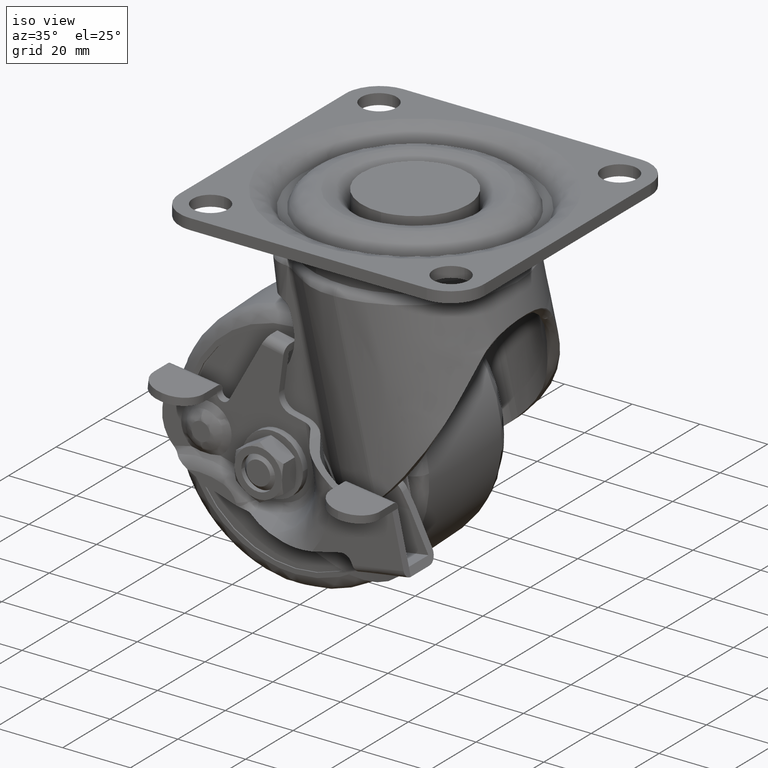
[diagram: clean part render]
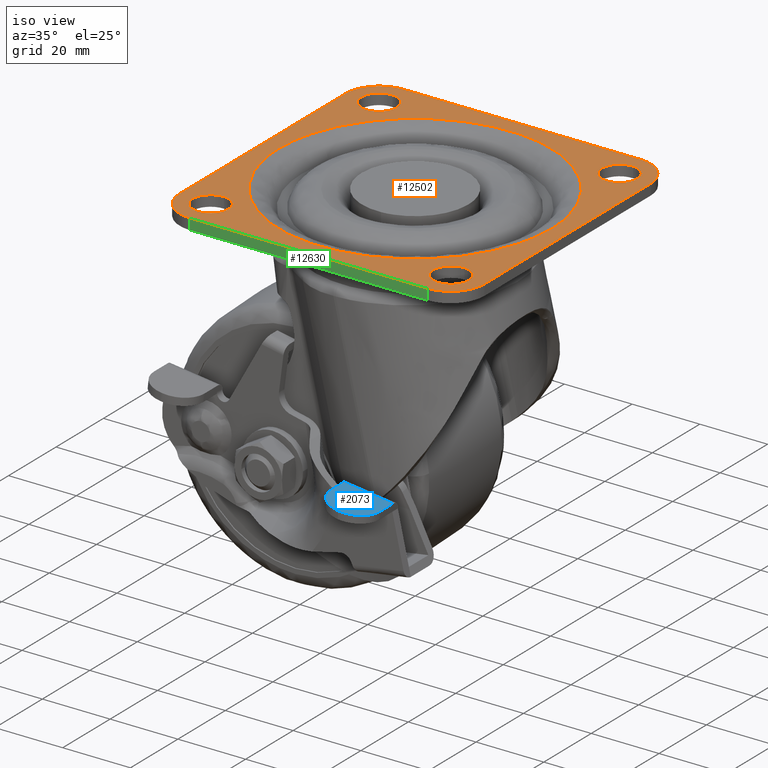
[diagram: same view with three faces highlighted in distinct colors, each labeled with its STEP entity id]
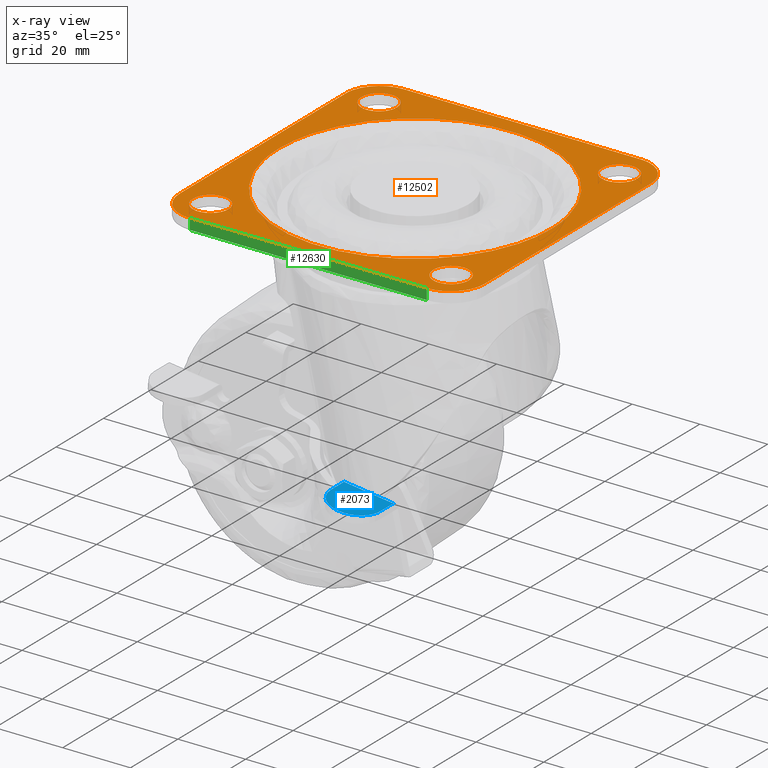
[diagram: x-ray of the same camera — body ghosted, the three highlighted faces saturated]
A machine part, iso view with three faces highlighted in distinct colors.
The next image is the same camera in x-ray (body ghosted, the three faces saturated) — at least one of them is partly hidden behind the body in this view.
Their STEP definitions:

[orange] entity #12502 — the highlighted face is a freeform B-spline surface patch.
#11125=CARTESIAN_POINT('',(-35.820504832751801,30.259792308297051,2.775558E-017));
#11126=VERTEX_POINT('',#11125);
#11127=CARTESIAN_POINT('',(-30.250000000000000,35.500000000000000,0.0));
#11128=VERTEX_POINT('',#11127);
#11129=CARTESIAN_POINT('',(-35.820504832751809,30.259792308297047,0.0));
#11130=CARTESIAN_POINT('',(-35.660402007414767,30.250000000000000,0.0));
#11131=CARTESIAN_POINT('',(-35.500000000000000,30.250000000000000,0.0));
#11132=CARTESIAN_POINT('',(-30.249999999999986,30.249999999999986,0.0));
#11133=CARTESIAN_POINT('',(-30.250000000000000,35.500000000000000,0.0));
#11141=(BOUNDED_CURVE()B_SPLINE_CURVE(2,(#11129,#11130,#11131,#11132,#11133),.UNSPECIFIED.,.F.,.U.)B_SPLINE_CURVE_WITH_KNOTS((3,2,3),(0.239332962235587,0.250000000000000,0.500000000000000),.UNSPECIFIED.)CURVE()GEOMETRIC_REPRESENTATION_ITEM()RATIONAL_B_SPLINE_CURVE((0.976072041659525,0.987502787895906,1.0,0.707106781186547,1.0))REPRESENTATION_ITEM(''));
#11142=EDGE_CURVE('',#11126,#11128,#11141,.T.);
#11144=CARTESIAN_POINT('',(-35.179495167248213,40.740207691702949,2.775558E-017));
#11145=VERTEX_POINT('',#11144);
#11146=CARTESIAN_POINT('',(-30.250000000000000,35.500000000000000,0.0));
#11147=CARTESIAN_POINT('',(-30.249999999999986,40.438706851071906,0.0));
#11148=CARTESIAN_POINT('',(-35.179495167248206,40.740207691702935,0.0));
#11156=(BOUNDED_CURVE()B_SPLINE_CURVE(2,(#11146,#11147,#11148),.UNSPECIFIED.,.F.,.U.)B_SPLINE_CURVE_WITH_KNOTS((3,3),(0.500000000000000,0.739332962235587),.UNSPECIFIED.)CURVE()GEOMETRIC_REPRESENTATION_ITEM()RATIONAL_B_SPLINE_CURVE((1.0,0.719603993290642,0.976072041659526))REPRESENTATION_ITEM(''));
#11157=EDGE_CURVE('',#11128,#11145,#11156,.T.);
#11224=CARTESIAN_POINT('',(-40.749999999999993,35.500000000000000,0.0));
#11225=VERTEX_POINT('',#11224);
#11226=CARTESIAN_POINT('',(-40.749999999999993,35.500000000000000,0.0));
#11227=CARTESIAN_POINT('',(-40.749999999999986,30.561293148928090,0.0));
#11228=CARTESIAN_POINT('',(-35.820504832751809,30.259792308297044,0.0));
#11236=(BOUNDED_CURVE()B_SPLINE_CURVE(2,(#11226,#11227,#11228),.UNSPECIFIED.,.F.,.U.)B_SPLINE_CURVE_WITH_KNOTS((3,3),(0.0,0.239332962235587),.UNSPECIFIED.)CURVE()GEOMETRIC_REPRESENTATION_ITEM()RATIONAL_B_SPLINE_CURVE((1.0,0.719603993290642,0.976072041659525))REPRESENTATION_ITEM(''));
#11237=EDGE_CURVE('',#11225,#11126,#11236,.T.);
#11271=CARTESIAN_POINT('',(-35.179495167248206,40.740207691702928,0.0));
#11272=CARTESIAN_POINT('',(-35.339597992585240,40.749999999999986,0.0));
#11273=CARTESIAN_POINT('',(-35.500000000000000,40.749999999999993,0.0));
#11274=CARTESIAN_POINT('',(-40.749999999999986,40.749999999999986,0.0));
#11275=CARTESIAN_POINT('',(-40.749999999999993,35.500000000000000,0.0));
#11283=(BOUNDED_CURVE()B_SPLINE_CURVE(2,(#11271,#11272,#11273,#11274,#11275),.UNSPECIFIED.,.F.,.U.)B_SPLINE_CURVE_WITH_KNOTS((3,2,3),(0.739332962235587,0.750000000000000,1.0),.UNSPECIFIED.)CURVE()GEOMETRIC_REPRESENTATION_ITEM()RATIONAL_B_SPLINE_CURVE((0.976072041659526,0.987502787895906,1.0,0.707106781186547,1.0))REPRESENTATION_ITEM(''));
#11284=EDGE_CURVE('',#11145,#11225,#11283,.T.);
#11307=CARTESIAN_POINT('',(35.179495167248199,30.259792308297051,-1.665335E-016));
#11308=VERTEX_POINT('',#11307);
#11309=CARTESIAN_POINT('',(40.749999999999993,35.500000000000000,0.0));
#11310=VERTEX_POINT('',#11309);
#11311=CARTESIAN_POINT('',(35.179495167248199,30.259792308297051,0.0));
#11312=CARTESIAN_POINT('',(35.339597992585240,30.249999999999996,0.0));
#11313=CARTESIAN_POINT('',(35.500000000000000,30.250000000000000,0.0));
#11314=CARTESIAN_POINT('',(40.749999999999986,30.249999999999986,0.0));
#11315=CARTESIAN_POINT('',(40.749999999999993,35.500000000000000,0.0));
#11323=(BOUNDED_CURVE()B_SPLINE_CURVE(2,(#11311,#11312,#11313,#11314,#11315),.UNSPECIFIED.,.F.,.U.)B_SPLINE_CURVE_WITH_KNOTS((3,2,3),(0.239332962235587,0.250000000000000,0.500000000000000),.UNSPECIFIED.)CURVE()GEOMETRIC_REPRESENTATION_ITEM()RATIONAL_B_SPLINE_CURVE((0.976072041659525,0.987502787895906,1.0,0.707106781186547,1.0))REPRESENTATION_ITEM(''));
#11324=EDGE_CURVE('',#11308,#11310,#11323,.T.);
#11326=CARTESIAN_POINT('',(35.820504832751787,40.740207691702949,2.775558E-017));
#11327=VERTEX_POINT('',#11326);
#11328=CARTESIAN_POINT('',(40.749999999999993,35.500000000000000,0.0));
#11329=CARTESIAN_POINT('',(40.749999999999993,40.438706851071906,0.0));
#11330=CARTESIAN_POINT('',(35.820504832751787,40.740207691702935,0.0));
#11338=(BOUNDED_CURVE()B_SPLINE_CURVE(2,(#11328,#11329,#11330),.UNSPECIFIED.,.F.,.U.)B_SPLINE_CURVE_WITH_KNOTS((3,3),(0.500000000000000,0.739332962235587),.UNSPECIFIED.)CURVE()GEOMETRIC_REPRESENTATION_ITEM()RATIONAL_B_SPLINE_CURVE((1.0,0.719603993290642,0.976072041659526))REPRESENTATION_ITEM(''));
#11339=EDGE_CURVE('',#11310,#11327,#11338,.T.);
#11406=CARTESIAN_POINT('',(30.250000000000000,35.500000000000000,0.0));
#11407=VERTEX_POINT('',#11406);
#11408=CARTESIAN_POINT('',(30.250000000000000,35.500000000000000,0.0));
#11409=CARTESIAN_POINT('',(30.249999999999993,30.561293148928080,0.0));
#11410=CARTESIAN_POINT('',(35.179495167248199,30.259792308297051,0.0));
#11418=(BOUNDED_CURVE()B_SPLINE_CURVE(2,(#11408,#11409,#11410),.UNSPECIFIED.,.F.,.U.)B_SPLINE_CURVE_WITH_KNOTS((3,3),(0.0,0.239332962235587),.UNSPECIFIED.)CURVE()GEOMETRIC_REPRESENTATION_ITEM()RATIONAL_B_SPLINE_CURVE((1.0,0.719603993290642,0.976072041659525))REPRESENTATION_ITEM(''));
#11419=EDGE_CURVE('',#11407,#11308,#11418,.T.);
#11453=CARTESIAN_POINT('',(35.820504832751787,40.740207691702935,0.0));
#11454=CARTESIAN_POINT('',(35.660402007414753,40.749999999999986,0.0));
#11455=CARTESIAN_POINT('',(35.500000000000000,40.749999999999993,0.0));
#11456=CARTESIAN_POINT('',(30.249999999999986,40.749999999999986,0.0));
#11457=CARTESIAN_POINT('',(30.250000000000000,35.500000000000000,0.0));
#11465=(BOUNDED_CURVE()B_SPLINE_CURVE(2,(#11453,#11454,#11455,#11456,#11457),.UNSPECIFIED.,.F.,.U.)B_SPLINE_CURVE_WITH_KNOTS((3,2,3),(0.739332962235587,0.750000000000000,1.0),.UNSPECIFIED.)CURVE()GEOMETRIC_REPRESENTATION_ITEM()RATIONAL_B_SPLINE_CURVE((0.976072041659526,0.987502787895906,1.0,0.707106781186547,1.0))REPRESENTATION_ITEM(''));
#11466=EDGE_CURVE('',#11327,#11407,#11465,.T.);
#11489=CARTESIAN_POINT('',(35.179495167248199,-40.740207691702949,2.775558E-017));
#11490=VERTEX_POINT('',#11489);
#11491=CARTESIAN_POINT('',(40.749999999999993,-35.500000000000000,0.0));
#11492=VERTEX_POINT('',#11491);
#11493=CARTESIAN_POINT('',(35.179495167248199,-40.740207691702942,0.0));
#11494=CARTESIAN_POINT('',(35.339597992585233,-40.749999999999993,0.0));
#11495=CARTESIAN_POINT('',(35.500000000000000,-40.749999999999993,0.0));
#11496=CARTESIAN_POINT('',(40.749999999999986,-40.749999999999986,0.0));
#11497=CARTESIAN_POINT('',(40.749999999999993,-35.500000000000000,0.0));
#11505=(BOUNDED_CURVE()B_SPLINE_CURVE(2,(#11493,#11494,#11495,#11496,#11497),.UNSPECIFIED.,.F.,.U.)B_SPLINE_CURVE_WITH_KNOTS((3,2,3),(0.239332962235587,0.250000000000000,0.500000000000000),.UNSPECIFIED.)CURVE()GEOMETRIC_REPRESENTATION_ITEM()RATIONAL_B_SPLINE_CURVE((0.976072041659525,0.987502787895906,1.0,0.707106781186547,1.0))REPRESENTATION_ITEM(''));
#11506=EDGE_CURVE('',#11490,#11492,#11505,.T.);
#11508=CARTESIAN_POINT('',(35.820504832751787,-30.259792308297051,2.775558E-017));
#11509=VERTEX_POINT('',#11508);
#11510=CARTESIAN_POINT('',(40.749999999999993,-35.500000000000000,0.0));
#11511=CARTESIAN_POINT('',(40.749999999999993,-30.561293148928076,0.0));
#11512=CARTESIAN_POINT('',(35.820504832751787,-30.259792308297047,0.0));
#11520=(BOUNDED_CURVE()B_SPLINE_CURVE(2,(#11510,#11511,#11512),.UNSPECIFIED.,.F.,.U.)B_SPLINE_CURVE_WITH_KNOTS((3,3),(0.500000000000000,0.739332962235587),.UNSPECIFIED.)CURVE()GEOMETRIC_REPRESENTATION_ITEM()RATIONAL_B_SPLINE_CURVE((1.0,0.719603993290642,0.976072041659526))REPRESENTATION_ITEM(''));
#11521=EDGE_CURVE('',#11492,#11509,#11520,.T.);
#11588=CARTESIAN_POINT('',(30.250000000000000,-35.500000000000000,0.0));
#11589=VERTEX_POINT('',#11588);
#11590=CARTESIAN_POINT('',(30.250000000000000,-35.500000000000000,0.0));
#11591=CARTESIAN_POINT('',(30.249999999999996,-40.438706851071913,0.0));
#11592=CARTESIAN_POINT('',(35.179495167248199,-40.740207691702942,0.0));
#11600=(BOUNDED_CURVE()B_SPLINE_CURVE(2,(#11590,#11591,#11592),.UNSPECIFIED.,.F.,.U.)B_SPLINE_CURVE_WITH_KNOTS((3,3),(0.0,0.239332962235587),.UNSPECIFIED.)CURVE()GEOMETRIC_REPRESENTATION_ITEM()RATIONAL_B_SPLINE_CURVE((1.0,0.719603993290642,0.976072041659525))REPRESENTATION_ITEM(''));
#11601=EDGE_CURVE('',#11589,#11490,#11600,.T.);
#11635=CARTESIAN_POINT('',(35.820504832751801,-30.259792308297047,0.0));
#11636=CARTESIAN_POINT('',(35.660402007414760,-30.249999999999996,0.0));
#11637=CARTESIAN_POINT('',(35.500000000000000,-30.250000000000000,0.0));
#11638=CARTESIAN_POINT('',(30.249999999999986,-30.249999999999986,0.0));
#11639=CARTESIAN_POINT('',(30.250000000000000,-35.500000000000000,0.0));
#11647=(BOUNDED_CURVE()B_SPLINE_CURVE(2,(#11635,#11636,#11637,#11638,#11639),.UNSPECIFIED.,.F.,.U.)B_SPLINE_CURVE_WITH_KNOTS((3,2,3),(0.739332962235587,0.750000000000000,1.0),.UNSPECIFIED.)CURVE()GEOMETRIC_REPRESENTATION_ITEM()RATIONAL_B_SPLINE_CURVE((0.976072041659525,0.987502787895906,1.0,0.707106781186547,1.0))REPRESENTATION_ITEM(''));
#11648=EDGE_CURVE('',#11509,#11589,#11647,.T.);
#11671=CARTESIAN_POINT('',(-35.820504832751787,-40.740207691702949,2.775558E-017));
#11672=VERTEX_POINT('',#11671);
#11673=CARTESIAN_POINT('',(-30.250000000000000,-35.500000000000000,0.0));
#11674=VERTEX_POINT('',#11673);
#11675=CARTESIAN_POINT('',(-35.820504832751787,-40.740207691702942,0.0));
#11676=CARTESIAN_POINT('',(-35.660402007414753,-40.749999999999993,0.0));
#11677=CARTESIAN_POINT('',(-35.500000000000000,-40.749999999999993,0.0));
#11678=CARTESIAN_POINT('',(-30.249999999999986,-40.749999999999986,0.0));
#11679=CARTESIAN_POINT('',(-30.250000000000000,-35.500000000000000,0.0));
#11687=(BOUNDED_CURVE()B_SPLINE_CURVE(2,(#11675,#11676,#11677,#11678,#11679),.UNSPECIFIED.,.F.,.U.)B_SPLINE_CURVE_WITH_KNOTS((3,2,3),(0.239332962235587,0.250000000000000,0.500000000000000),.UNSPECIFIED.)CURVE()GEOMETRIC_REPRESENTATION_ITEM()RATIONAL_B_SPLINE_CURVE((0.976072041659526,0.987502787895906,1.0,0.707106781186547,1.0))REPRESENTATION_ITEM(''));
#11688=EDGE_CURVE('',#11672,#11674,#11687,.T.);
#11690=CARTESIAN_POINT('',(-35.179495167248213,-30.259792308297051,-1.665335E-016));
#11691=VERTEX_POINT('',#11690);
#11692=CARTESIAN_POINT('',(-30.250000000000000,-35.500000000000000,0.0));
#11693=CARTESIAN_POINT('',(-30.249999999999986,-30.561293148928076,0.0));
#11694=CARTESIAN_POINT('',(-35.179495167248206,-30.259792308297047,0.0));
#11702=(BOUNDED_CURVE()B_SPLINE_CURVE(2,(#11692,#11693,#11694),.UNSPECIFIED.,.F.,.U.)B_SPLINE_CURVE_WITH_KNOTS((3,3),(0.500000000000000,0.739332962235587),.UNSPECIFIED.)CURVE()GEOMETRIC_REPRESENTATION_ITEM()RATIONAL_B_SPLINE_CURVE((1.0,0.719603993290642,0.976072041659526))REPRESENTATION_ITEM(''));
#11703=EDGE_CURVE('',#11674,#11691,#11702,.T.);
#11770=CARTESIAN_POINT('',(-40.749999999999993,-35.500000000000000,0.0));
#11771=VERTEX_POINT('',#11770);
#11772=CARTESIAN_POINT('',(-40.749999999999993,-35.500000000000000,0.0));
#11773=CARTESIAN_POINT('',(-40.749999999999993,-40.438706851071920,0.0));
#11774=CARTESIAN_POINT('',(-35.820504832751794,-40.740207691702928,0.0));
#11782=(BOUNDED_CURVE()B_SPLINE_CURVE(2,(#11772,#11773,#11774),.UNSPECIFIED.,.F.,.U.)B_SPLINE_CURVE_WITH_KNOTS((3,3),(0.0,0.239332962235587),.UNSPECIFIED.)CURVE()GEOMETRIC_REPRESENTATION_ITEM()RATIONAL_B_SPLINE_CURVE((1.0,0.719603993290641,0.976072041659526))REPRESENTATION_ITEM(''));
#11783=EDGE_CURVE('',#11771,#11672,#11782,.T.);
#11817=CARTESIAN_POINT('',(-35.179495167248206,-30.259792308297051,0.0));
#11818=CARTESIAN_POINT('',(-35.339597992585240,-30.249999999999996,0.0));
#11819=CARTESIAN_POINT('',(-35.500000000000000,-30.250000000000000,0.0));
#11820=CARTESIAN_POINT('',(-40.749999999999986,-30.249999999999986,0.0));
#11821=CARTESIAN_POINT('',(-40.749999999999993,-35.500000000000000,0.0));
#11829=(BOUNDED_CURVE()B_SPLINE_CURVE(2,(#11817,#11818,#11819,#11820,#11821),.UNSPECIFIED.,.F.,.U.)B_SPLINE_CURVE_WITH_KNOTS((3,2,3),(0.739332962235587,0.750000000000000,1.0),.UNSPECIFIED.)CURVE()GEOMETRIC_REPRESENTATION_ITEM()RATIONAL_B_SPLINE_CURVE((0.976072041659526,0.987502787895906,1.0,0.707106781186547,1.0))REPRESENTATION_ITEM(''));
#11830=EDGE_CURVE('',#11691,#11771,#11829,.T.);
#12226=CARTESIAN_POINT('',(-38.540439564951292,11.460112629843660,-1.113611E-015));
#12227=VERTEX_POINT('',#12226);
#12241=CARTESIAN_POINT('',(-40.208203932499401,0.0,0.0));
#12242=VERTEX_POINT('',#12241);
#12243=CARTESIAN_POINT('',(-40.208203932499401,0.0,0.0));
#12244=CARTESIAN_POINT('',(-40.208203931730026,5.851409309881770,-5.568056E-016));
#12245=CARTESIAN_POINT('',(-38.540439564951278,11.460112629843657,-1.113611E-015));
#12253=(BOUNDED_CURVE()B_SPLINE_CURVE(2,(#12243,#12244,#12245),.UNSPECIFIED.,.F.,.U.)B_SPLINE_CURVE_WITH_KNOTS((3,3),(0.0,0.048526662065398),.UNSPECIFIED.)CURVE()GEOMETRIC_REPRESENTATION_ITEM()RATIONAL_B_SPLINE_CURVE((1.0,0.943147478997572,0.908365862589150))REPRESENTATION_ITEM(''));
#12254=EDGE_CURVE('',#12242,#12227,#12253,.T.);
#12256=CARTESIAN_POINT('',(38.540439564951299,-11.460112629843660,-1.113611E-015));
#12257=VERTEX_POINT('',#12256);
#12258=CARTESIAN_POINT('',(38.540439564951299,-11.460112629843660,-1.113611E-015));
#12259=CARTESIAN_POINT('',(37.795821765132509,-13.965342330398570,-1.108348E-015));
#12260=CARTESIAN_POINT('',(36.268088796374869,-17.717719020729088,-1.094754E-015));
#12261=CARTESIAN_POINT('',(33.475686237040442,-22.408159612348609,-1.065537E-015));
#12262=CARTESIAN_POINT('',(30.562148134557368,-26.298647580398530,-1.033031E-015));
#12263=CARTESIAN_POINT('',(27.222615185059059,-29.736078502935911,-9.937124E-016));
#12264=CARTESIAN_POINT('',(23.193328854095508,-32.957725252187927,-9.444071E-016));
#12265=CARTESIAN_POINT('',(18.620848232331230,-35.808635493543171,-8.868325E-016));
#12266=CARTESIAN_POINT('',(13.047188248337870,-38.211680929306013,-8.144909E-016));
#12267=CARTESIAN_POINT('',(7.603063371804116,-39.591631584371193,-7.418813E-016));
#12268=CARTESIAN_POINT('',(3.002549657343119,-40.159884822911181,-6.793183E-016));
#12269=CARTESIAN_POINT('',(-0.659272947269974,-40.252946300360541,-6.287967E-016));
#12270=CARTESIAN_POINT('',(-5.060105832568339,-39.984562546823739,-5.673129E-016));
#12271=CARTESIAN_POINT('',(-9.409390183143508,-39.202337641466052,-5.055073E-016));
#12272=CARTESIAN_POINT('',(-14.332143039577920,-37.661692490658623,-4.342319E-016));
#12273=CARTESIAN_POINT('',(-18.163121735747350,-35.962306849017551,-3.777556E-016));
#12274=CARTESIAN_POINT('',(-21.976221599427159,-33.747760293656782,-3.204886E-016));
#12275=CARTESIAN_POINT('',(-25.133110061192831,-31.476569620860101,-2.721948E-016));
#12276=CARTESIAN_POINT('',(-28.597034792919320,-28.397051067213820,-2.180201E-016));
#12277=CARTESIAN_POINT('',(-31.582292405058489,-25.041584441097040,-1.699178E-016));
#12278=CARTESIAN_POINT('',(-34.056746521906462,-21.480416663085649,-1.284747E-016));
#12279=CARTESIAN_POINT('',(-36.303758250302991,-17.513613881714470,-8.936377E-017));
#12280=CARTESIAN_POINT('',(-37.977682542489248,-13.504917534335179,-5.810454E-017));
#12281=CARTESIAN_POINT('',(-39.300448521802878,-8.830522793075060,-3.036660E-017));
#12282=CARTESIAN_POINT('',(-40.033289125722291,-4.629671143317897,-1.175230E-017));
#12283=CARTESIAN_POINT('',(-40.208234757607663,-1.493441700746538,-3.009271E-018));
#12284=CARTESIAN_POINT('',(-40.208203932499401,0.0,0.0));
#12285=B_SPLINE_CURVE_WITH_KNOTS('',3,(#12258,#12259,#12260,#12261,#12262,#12263,#12264,#12265,#12266,#12267,#12268,#12269,#12270,#12271,#12272,#12273,#12274,#12275,#12276,#12277,#12278,#12279,#12280,#12281,#12282,#12283,#12284),.UNSPECIFIED.,.F.,.U.,(4,1,1,1,1,1,1,1,1,1,1,1,1,1,1,1,1,1,1,1,1,1,1,1,4),(0.000000025216252,7.840573062430906,12.096918016360140,16.353234764167890,22.401704575651561,26.434010814585751,31.810430364049271,38.530954436930699,44.579413033762847,48.611757353039863,52.419900248934240,55.556149581855742,61.828692757039263,65.636945986846740,71.013366380022376,74.373628016034203,78.853979624156736,82.662277535663520,88.262707158904263,92.295016460231864,95.655295295375382,101.927777206021700,105.288000604014600,110.216379881113990,114.696709005320500),.UNSPECIFIED.);
#12286=EDGE_CURVE('',#12257,#12242,#12285,.T.);
#12329=CARTESIAN_POINT('',(40.208203932499401,0.0,0.0));
#12330=VERTEX_POINT('',#12329);
#12331=CARTESIAN_POINT('',(40.208203932499401,0.0,0.0));
#12332=CARTESIAN_POINT('',(40.208203931730026,-5.851409309881769,-5.568056E-016));
#12333=CARTESIAN_POINT('',(38.540439564951299,-11.460112629843657,-1.113611E-015));
#12341=(BOUNDED_CURVE()B_SPLINE_CURVE(2,(#12331,#12332,#12333),.UNSPECIFIED.,.F.,.U.)B_SPLINE_CURVE_WITH_KNOTS((3,3),(0.500000000000000,0.548526662065398),.UNSPECIFIED.)CURVE()GEOMETRIC_REPRESENTATION_ITEM()RATIONAL_B_SPLINE_CURVE((1.0,0.943147478997572,0.908365862589150))REPRESENTATION_ITEM(''));
#12342=EDGE_CURVE('',#12330,#12257,#12341,.T.);
#12344=CARTESIAN_POINT('',(-38.540439564951292,11.460112629843660,-1.113611E-015));
#12345=CARTESIAN_POINT('',(-37.923381750150106,13.535834131695919,-1.109249E-015));
#12346=CARTESIAN_POINT('',(-36.677572139631359,16.748884495506680,-1.098472E-015));
#12347=CARTESIAN_POINT('',(-34.178166302812102,21.346336807139348,-1.073126E-015));
#12348=CARTESIAN_POINT('',(-31.769851146094389,24.776268177075401,-1.046687E-015));
#12349=CARTESIAN_POINT('',(-28.810215689424961,28.145121785536240,-1.012491E-015));
#12350=CARTESIAN_POINT('',(-25.197121807352580,31.509314559702322,-9.692368E-016));
#12351=CARTESIAN_POINT('',(-20.398511693151100,34.846237569755672,-9.095102E-016));
#12352=CARTESIAN_POINT('',(-15.068600871822900,37.413167966629103,-8.408743E-016));
#12353=CARTESIAN_POINT('',(-9.586714529588557,39.183336474889749,-7.685282E-016));
#12354=CARTESIAN_POINT('',(-4.717208078747849,40.034565322001221,-7.028105E-016));
#12355=CARTESIAN_POINT('',(0.433714437970055,40.294786585509783,-6.320046E-016));
#12356=CARTESIAN_POINT('',(4.990462611081474,40.004015322443607,-5.683165E-016));
#12357=CARTESIAN_POINT('',(10.279251950537340,38.991905108348149,-4.930374E-016));
#12358=CARTESIAN_POINT('',(15.610452141369800,37.225267955277708,-4.156503E-016));
#12359=CARTESIAN_POINT('',(20.410553612159521,34.767358282699767,-3.442249E-016));
#12360=CARTESIAN_POINT('',(24.486560851957389,31.987152183330110,-2.821772E-016));
#12361=CARTESIAN_POINT('',(28.305401710778050,28.741712991926882,-2.227532E-016));
#12362=CARTESIAN_POINT('',(32.139676150368821,24.431882699549831,-1.609704E-016));
#12363=CARTESIAN_POINT('',(35.296855986124093,19.517735316608601,-1.073463E-016));
#12364=CARTESIAN_POINT('',(37.281102758132221,15.242567265878639,-7.125266E-017));
#12365=CARTESIAN_POINT('',(38.678639527343492,11.218805392700499,-4.379049E-017));
#12366=CARTESIAN_POINT('',(39.854313646201220,6.347053421351478,-1.769176E-017));
#12367=CARTESIAN_POINT('',(40.208451376029359,2.389527151357984,-4.812132E-018));
#12368=CARTESIAN_POINT('',(40.208203932499401,0.0,0.0));
#12369=B_SPLINE_CURVE_WITH_KNOTS('',3,(#12344,#12345,#12346,#12347,#12348,#12349,#12350,#12351,#12352,#12353,#12354,#12355,#12356,#12357,#12358,#12359,#12360,#12361,#12362,#12363,#12364,#12365,#12366,#12367,#12368),.UNSPECIFIED.,.F.,.U.,(4,1,1,1,1,1,1,1,1,1,1,1,1,1,1,1,1,1,1,1,1,1,4),(0.000000024725466,6.496467788988184,10.304758629827280,15.681183944968540,19.041445229484442,23.745806271173731,30.466321053762311,36.514780527521147,41.443193744071323,47.715668989986227,51.299902523249060,56.900248375963123,61.380607072786681,67.429110680320917,73.701578885155342,77.509873433726639,82.214242291164226,88.710751451723070,94.759225531075572,99.687585625715585,102.823850426941210,107.528171829941000,114.696709005321690),.UNSPECIFIED.);
#12370=EDGE_CURVE('',#12227,#12330,#12369,.T.);
#12377=CARTESIAN_POINT('',(-49.495499825562533,49.495499825562533,0.0));
#12378=CARTESIAN_POINT('',(49.495502239550653,49.495499825562533,0.0));
#12379=CARTESIAN_POINT('',(-49.495499825562533,-49.495502239550653,0.0));
#12380=CARTESIAN_POINT('',(49.495502239550653,-49.495502239550653,0.0));
#12381=B_SPLINE_SURFACE_WITH_KNOTS('',1,1,((#12377,#12379),(#12378,#12380)),.UNSPECIFIED.,.F.,.F.,.U.,(2,2),(2,2),(0.0,98.991002065113179),(0.0,98.991002065113179),.UNSPECIFIED.);
#12382=CARTESIAN_POINT('',(35.0,45.0,0.0));
#12383=VERTEX_POINT('',#12382);
#12384=CARTESIAN_POINT('',(-35.0,45.0,0.0));
#12385=VERTEX_POINT('',#12384);
#12386=CARTESIAN_POINT('',(35.0,45.0,0.0));
#12387=CARTESIAN_POINT('',(-35.0,45.0,0.0));
#12388=QUASI_UNIFORM_CURVE('',1,(#12386,#12387),.UNSPECIFIED.,.F.,.U.);
#12389=EDGE_CURVE('',#12383,#12385,#12388,.T.);
#12390=ORIENTED_EDGE('',*,*,#12389,.T.);
#12391=CARTESIAN_POINT('',(-45.0,35.0,0.0));
#12392=VERTEX_POINT('',#12391);
#12393=CARTESIAN_POINT('',(-35.0,45.000000000000007,0.0));
#12394=CARTESIAN_POINT('',(-45.000000000000014,45.000000000000014,0.0));
#12395=CARTESIAN_POINT('',(-45.000000000000007,35.0,0.0));
#12403=(BOUNDED_CURVE()B_SPLINE_CURVE(2,(#12393,#12394,#12395),.UNSPECIFIED.,.F.,.U.)CURVE()GEOMETRIC_REPRESENTATION_ITEM()QUASI_UNIFORM_CURVE()RATIONAL_B_SPLINE_CURVE((1.0,0.707106781186548,1.0))REPRESENTATION_ITEM(''));
#12404=EDGE_CURVE('',#12385,#12392,#12403,.T.);
#12405=ORIENTED_EDGE('',*,*,#12404,.T.);
#12406=CARTESIAN_POINT('',(-45.0,-35.0,0.0));
#12407=VERTEX_POINT('',#12406);
#12408=CARTESIAN_POINT('',(-45.0,35.0,0.0));
#12409=CARTESIAN_POINT('',(-45.0,-35.0,0.0));
#12410=QUASI_UNIFORM_CURVE('',1,(#12408,#12409),.UNSPECIFIED.,.F.,.U.);
#12411=EDGE_CURVE('',#12392,#12407,#12410,.T.);
#12412=ORIENTED_EDGE('',*,*,#12411,.T.);
#12413=CARTESIAN_POINT('',(-35.0,-45.0,0.0));
#12414=VERTEX_POINT('',#12413);
#12415=CARTESIAN_POINT('',(-45.000000000000007,-35.0,0.0));
#12416=CARTESIAN_POINT('',(-45.000000000000014,-45.000000000000014,0.0));
#12417=CARTESIAN_POINT('',(-35.0,-45.000000000000007,0.0));
#12425=(BOUNDED_CURVE()B_SPLINE_CURVE(2,(#12415,#12416,#12417),.UNSPECIFIED.,.F.,.U.)CURVE()GEOMETRIC_REPRESENTATION_ITEM()QUASI_UNIFORM_CURVE()RATIONAL_B_SPLINE_CURVE((1.0,0.707106781186548,1.0))REPRESENTATION_ITEM(''));
#12426=EDGE_CURVE('',#12407,#12414,#12425,.T.);
#12427=ORIENTED_EDGE('',*,*,#12426,.T.);
#12428=CARTESIAN_POINT('',(35.0,-45.0,0.0));
#12429=VERTEX_POINT('',#12428);
#12430=CARTESIAN_POINT('',(-35.0,-45.0,0.0));
#12431=CARTESIAN_POINT('',(35.0,-45.0,0.0));
#12432=QUASI_UNIFORM_CURVE('',1,(#12430,#12431),.UNSPECIFIED.,.F.,.U.);
#12433=EDGE_CURVE('',#12414,#12429,#12432,.T.);
#12434=ORIENTED_EDGE('',*,*,#12433,.T.);
#12435=CARTESIAN_POINT('',(45.0,-35.0,0.0));
#12436=VERTEX_POINT('',#12435);
#12437=CARTESIAN_POINT('',(35.0,-45.000000000000007,0.0));
#12438=CARTESIAN_POINT('',(45.000000000000014,-45.000000000000014,0.0));
#12439=CARTESIAN_POINT('',(45.000000000000007,-35.0,0.0));
#12447=(BOUNDED_CURVE()B_SPLINE_CURVE(2,(#12437,#12438,#12439),.UNSPECIFIED.,.F.,.U.)CURVE()GEOMETRIC_REPRESENTATION_ITEM()QUASI_UNIFORM_CURVE()RATIONAL_B_SPLINE_CURVE((1.0,0.707106781186548,1.0))REPRESENTATION_ITEM(''));
#12448=EDGE_CURVE('',#12429,#12436,#12447,.T.);
#12449=ORIENTED_EDGE('',*,*,#12448,.T.);
#12450=CARTESIAN_POINT('',(45.0,35.0,0.0));
#12451=VERTEX_POINT('',#12450);
#12452=CARTESIAN_POINT('',(45.0,-35.0,0.0));
#12453=CARTESIAN_POINT('',(45.0,35.0,0.0));
#12454=QUASI_UNIFORM_CURVE('',1,(#12452,#12453),.UNSPECIFIED.,.F.,.U.);
#12455=EDGE_CURVE('',#12436,#12451,#12454,.T.);
#12456=ORIENTED_EDGE('',*,*,#12455,.T.);
#12457=CARTESIAN_POINT('',(45.000000000000007,35.0,0.0));
#12458=CARTESIAN_POINT('',(45.000000000000014,45.000000000000014,0.0));
#12459=CARTESIAN_POINT('',(35.0,45.000000000000007,0.0));
#12467=(BOUNDED_CURVE()B_SPLINE_CURVE(2,(#12457,#12458,#12459),.UNSPECIFIED.,.F.,.U.)CURVE()GEOMETRIC_REPRESENTATION_ITEM()QUASI_UNIFORM_CURVE()RATIONAL_B_SPLINE_CURVE((1.0,0.707106781186548,1.0))REPRESENTATION_ITEM(''));
#12468=EDGE_CURVE('',#12451,#12383,#12467,.T.);
#12469=ORIENTED_EDGE('',*,*,#12468,.T.);
#12470=EDGE_LOOP('',(#12390,#12405,#12412,#12427,#12434,#12449,#12456,#12469));
#12471=FACE_OUTER_BOUND('',#12470,.T.);
#12472=ORIENTED_EDGE('',*,*,#12254,.T.);
#12473=ORIENTED_EDGE('',*,*,#12370,.T.);
#12474=ORIENTED_EDGE('',*,*,#12342,.T.);
#12475=ORIENTED_EDGE('',*,*,#12286,.T.);
#12476=EDGE_LOOP('',(#12472,#12473,#12474,#12475));
#12477=FACE_BOUND('',#12476,.T.);
#12478=ORIENTED_EDGE('',*,*,#11703,.F.);
#12479=ORIENTED_EDGE('',*,*,#11688,.F.);
#12480=ORIENTED_EDGE('',*,*,#11783,.F.);
#12481=ORIENTED_EDGE('',*,*,#11830,.F.);
#12482=EDGE_LOOP('',(#12478,#12479,#12480,#12481));
#12483=FACE_BOUND('',#12482,.T.);
#12484=ORIENTED_EDGE('',*,*,#11521,.F.);
#12485=ORIENTED_EDGE('',*,*,#11506,.F.);
#12486=ORIENTED_EDGE('',*,*,#11601,.F.);
#12487=ORIENTED_EDGE('',*,*,#11648,.F.);
#12488=EDGE_LOOP('',(#12484,#12485,#12486,#12487));
#12489=FACE_BOUND('',#12488,.T.);
#12490=ORIENTED_EDGE('',*,*,#11339,.F.);
#12491=ORIENTED_EDGE('',*,*,#11324,.F.);
#12492=ORIENTED_EDGE('',*,*,#11419,.F.);
#12493=ORIENTED_EDGE('',*,*,#11466,.F.);
#12494=EDGE_LOOP('',(#12490,#12491,#12492,#12493));
#12495=FACE_BOUND('',#12494,.T.);
#12496=ORIENTED_EDGE('',*,*,#11157,.F.);
#12497=ORIENTED_EDGE('',*,*,#11142,.F.);
#12498=ORIENTED_EDGE('',*,*,#11237,.F.);
#12499=ORIENTED_EDGE('',*,*,#11284,.F.);
#12500=EDGE_LOOP('',(#12496,#12497,#12498,#12499));
#12501=FACE_BOUND('',#12500,.T.);
#12502=ADVANCED_FACE('',(#12471,#12477,#12483,#12489,#12495,#12501),#12381,.F.);

[blue] entity #2073 — the highlighted face is a freeform B-spline surface patch.
#1127=CARTESIAN_POINT('',(20.008267999999902,-37.740012999999962,-64.217803000000103));
#1128=VERTEX_POINT('',#1127);
#1141=CARTESIAN_POINT('',(20.008267999999902,-43.200013999999953,-64.217803000000103));
#1142=VERTEX_POINT('',#1141);
#1143=CARTESIAN_POINT('',(20.008267999999902,-37.740012999999962,-64.217803000000103));
#1144=CARTESIAN_POINT('',(20.008267999999902,-43.200013999999953,-64.217803000000103));
#1145=QUASI_UNIFORM_CURVE('',1,(#1143,#1144),.UNSPECIFIED.,.F.,.U.);
#1146=EDGE_CURVE('',#1128,#1142,#1145,.T.);
#1750=CARTESIAN_POINT('',(5.451522999999900,-37.740012999999962,-62.332382000000003));
#1751=VERTEX_POINT('',#1750);
#1752=CARTESIAN_POINT('',(5.451522999999900,-43.200013999999953,-62.332382000000003));
#1753=VERTEX_POINT('',#1752);
#1754=CARTESIAN_POINT('',(5.451522999999900,-37.740012999999962,-62.332382000000003));
#1755=CARTESIAN_POINT('',(5.451522999999900,-43.200013999999953,-62.332382000000003));
#1756=QUASI_UNIFORM_CURVE('',1,(#1754,#1755),.UNSPECIFIED.,.F.,.U.);
#1757=EDGE_CURVE('',#1751,#1753,#1756,.T.);
#2018=CARTESIAN_POINT('',(20.008267999999902,-37.740012999999962,-64.217803000000103));
#2019=CARTESIAN_POINT('',(5.451522999999900,-37.740012999999962,-62.332382000000003));
#2020=QUASI_UNIFORM_CURVE('',1,(#2018,#2019),.UNSPECIFIED.,.F.,.U.);
#2021=EDGE_CURVE('',#1128,#1751,#2020,.T.);
#2028=CARTESIAN_POINT('',(4.724413634552389,-51.137376025218551,-62.238205077326732));
#2029=CARTESIAN_POINT('',(20.735377373733730,-51.137376025218551,-64.311982923746541));
#2030=CARTESIAN_POINT('',(4.724413634552389,-37.102650632531407,-62.238205077326732));
#2031=CARTESIAN_POINT('',(20.735377373733730,-37.102650632531407,-64.311982923746541));
#2032=B_SPLINE_SURFACE_WITH_KNOTS('',1,1,((#2028,#2030),(#2029,#2031)),.UNSPECIFIED.,.F.,.F.,.U.,(2,2),(2,2),(0.0,16.144705460728652),(0.0,14.034725392687140),.UNSPECIFIED.);
#2033=ORIENTED_EDGE('',*,*,#1146,.F.);
#2034=ORIENTED_EDGE('',*,*,#2021,.T.);
#2035=ORIENTED_EDGE('',*,*,#1757,.T.);
#2036=CARTESIAN_POINT('',(12.705161317889059,-50.500013999999901,-63.271890370303090));
#2037=VERTEX_POINT('',#2036);
#2038=CARTESIAN_POINT('',(5.451522999999900,-43.200013999999953,-62.332382000000003));
#2039=CARTESIAN_POINT('',(5.451523793605860,-50.500013999999901,-62.332382102789701));
#2040=CARTESIAN_POINT('',(12.705161317889059,-50.500013999999901,-63.271890370303090));
#2048=(BOUNDED_CURVE()B_SPLINE_CURVE(2,(#2038,#2039,#2040),.UNSPECIFIED.,.F.,.U.)CURVE()GEOMETRIC_REPRESENTATION_ITEM()QUASI_UNIFORM_CURVE()RATIONAL_B_SPLINE_CURVE((1.0,0.707106781186547,1.0))REPRESENTATION_ITEM(''));
#2049=EDGE_CURVE('',#1753,#2037,#2048,.T.);
#2050=ORIENTED_EDGE('',*,*,#2049,.T.);
#2051=CARTESIAN_POINT('',(12.768740357323701,-50.500013999999901,-63.280125277684398));
#2052=VERTEX_POINT('',#2051);
#2053=CARTESIAN_POINT('',(12.768740357323701,-50.500013999999901,-63.280125277684398));
#2054=CARTESIAN_POINT('',(12.705161317889059,-50.500013999999901,-63.271890370303090));
#2055=QUASI_UNIFORM_CURVE('',1,(#2053,#2054),.UNSPECIFIED.,.F.,.U.);
#2056=EDGE_CURVE('',#2052,#2037,#2055,.T.);
#2057=ORIENTED_EDGE('',*,*,#2056,.F.);
#2058=CARTESIAN_POINT('',(12.768740357323701,-50.500013999999901,-63.280125277684398));
#2059=CARTESIAN_POINT('',(20.008267808922199,-50.500013999999929,-64.217804475251256));
#2060=CARTESIAN_POINT('',(20.008267999999902,-43.200013999999953,-64.217803000000103));
#2068=(BOUNDED_CURVE()B_SPLINE_CURVE(2,(#2058,#2059,#2060),.UNSPECIFIED.,.F.,.U.)CURVE()GEOMETRIC_REPRESENTATION_ITEM()QUASI_UNIFORM_CURVE()RATIONAL_B_SPLINE_CURVE((1.0,0.707106781186547,1.0))REPRESENTATION_ITEM(''));
#2069=EDGE_CURVE('',#2052,#1142,#2068,.T.);
#2070=ORIENTED_EDGE('',*,*,#2069,.T.);
#2071=EDGE_LOOP('',(#2033,#2034,#2035,#2050,#2057,#2070));
#2072=FACE_OUTER_BOUND('',#2071,.T.);
#2073=ADVANCED_FACE('',(#2072),#2032,.T.);

[green] entity #12630 — the highlighted face is a freeform B-spline surface patch.
#12413=CARTESIAN_POINT('',(-35.0,-45.0,0.0));
#12414=VERTEX_POINT('',#12413);
#12428=CARTESIAN_POINT('',(35.0,-45.0,0.0));
#12429=VERTEX_POINT('',#12428);
#12430=CARTESIAN_POINT('',(-35.0,-45.0,0.0));
#12431=CARTESIAN_POINT('',(35.0,-45.0,0.0));
#12432=QUASI_UNIFORM_CURVE('',1,(#12430,#12431),.UNSPECIFIED.,.F.,.U.);
#12433=EDGE_CURVE('',#12414,#12429,#12432,.T.);
#12585=CARTESIAN_POINT('',(35.0,-45.0,-3.200000000000090));
#12586=VERTEX_POINT('',#12585);
#12587=CARTESIAN_POINT('',(35.0,-45.0,-3.200000000000090));
#12588=CARTESIAN_POINT('',(35.0,-45.0,0.0));
#12589=QUASI_UNIFORM_CURVE('',1,(#12587,#12588),.UNSPECIFIED.,.F.,.U.);
#12590=EDGE_CURVE('',#12586,#12429,#12589,.T.);
#12609=CARTESIAN_POINT('',(-38.496499864326417,-45.0,-3.359839993797874));
#12610=CARTESIAN_POINT('',(38.496501741872727,-45.0,-3.359839993797874));
#12611=CARTESIAN_POINT('',(-38.496499864326417,-45.0,0.159840079628472));
#12612=CARTESIAN_POINT('',(38.496501741872727,-45.0,0.159840079628472));
#12613=B_SPLINE_SURFACE_WITH_KNOTS('',1,1,((#12609,#12611),(#12610,#12612)),.UNSPECIFIED.,.F.,.F.,.U.,(2,2),(2,2),(0.0,76.993001606199158),(0.0,3.519680073426347),.UNSPECIFIED.);
#12614=ORIENTED_EDGE('',*,*,#12433,.F.);
#12615=CARTESIAN_POINT('',(-35.0,-45.0,-3.200000000000090));
#12616=VERTEX_POINT('',#12615);
#12617=CARTESIAN_POINT('',(-35.0,-45.0,-3.200000000000090));
#12618=CARTESIAN_POINT('',(-35.0,-45.0,0.0));
#12619=QUASI_UNIFORM_CURVE('',1,(#12617,#12618),.UNSPECIFIED.,.F.,.U.);
#12620=EDGE_CURVE('',#12616,#12414,#12619,.T.);
#12621=ORIENTED_EDGE('',*,*,#12620,.F.);
#12622=CARTESIAN_POINT('',(-35.0,-45.0,-3.200000000000090));
#12623=CARTESIAN_POINT('',(35.0,-45.0,-3.200000000000090));
#12624=QUASI_UNIFORM_CURVE('',1,(#12622,#12623),.UNSPECIFIED.,.F.,.U.);
#12625=EDGE_CURVE('',#12616,#12586,#12624,.T.);
#12626=ORIENTED_EDGE('',*,*,#12625,.T.);
#12627=ORIENTED_EDGE('',*,*,#12590,.T.);
#12628=EDGE_LOOP('',(#12614,#12621,#12626,#12627));
#12629=FACE_OUTER_BOUND('',#12628,.T.);
#12630=ADVANCED_FACE('',(#12629),#12613,.T.);